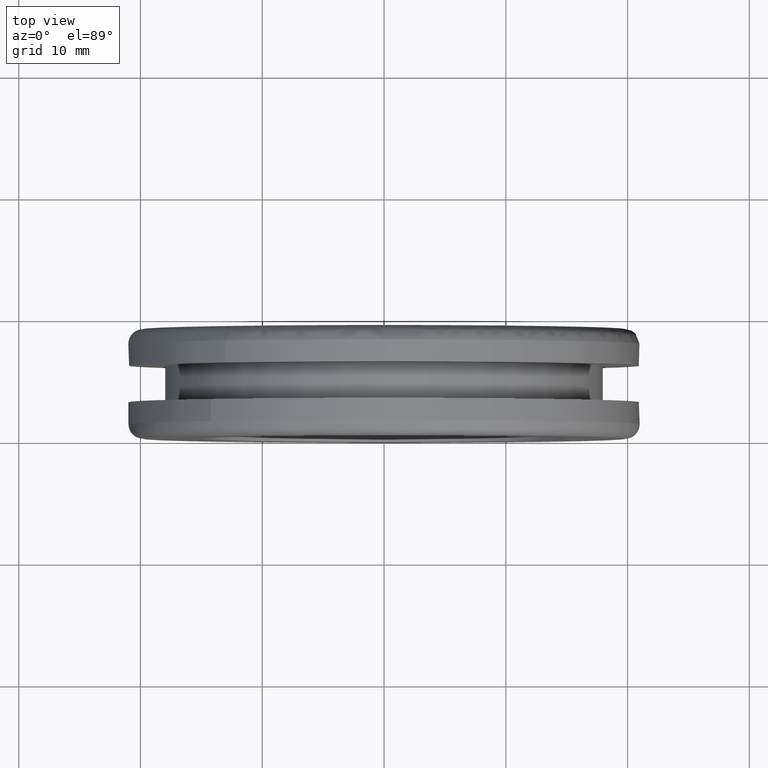
[diagram: clean part render]
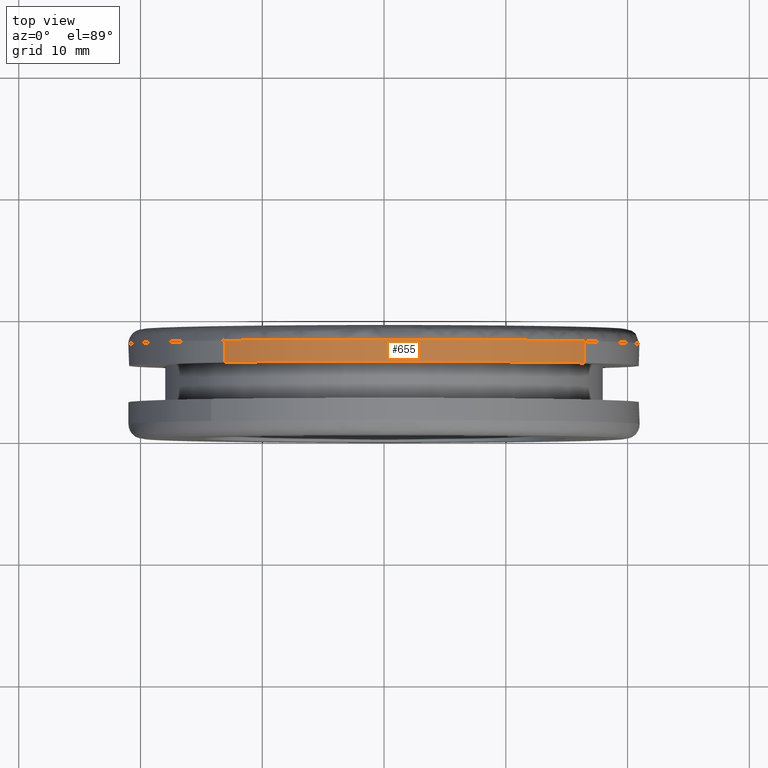
[diagram: same view with one face highlighted and labeled with its STEP entity id]
A machine part, top view. The second image highlights one B-rep face of the part: STEP entity #655.
In plain terms, the highlighted face is a freeform B-spline surface patch.
Its self-contained STEP definition (entity closure, byte-faithful):
#468=CARTESIAN_POINT('',(-13.072806069207591,7.800000000011131,16.434772328112299));
#469=VERTEX_POINT('',#468);
#515=CARTESIAN_POINT('',(16.434772329288549,7.799999999999820,13.072806067728861));
#516=VERTEX_POINT('',#515);
#532=CARTESIAN_POINT('',(16.434772412118811,6.0,13.072805963596920));
#533=VERTEX_POINT('',#532);
#534=CARTESIAN_POINT('',(16.434772329288549,7.799999999999820,13.072806067728861));
#535=CARTESIAN_POINT('',(16.434772412118811,6.0,13.072805963596920));
#536=QUASI_UNIFORM_CURVE('',1,(#534,#535),.UNSPECIFIED.,.F.,.U.);
#537=EDGE_CURVE('',#516,#533,#536,.T.);
#556=CARTESIAN_POINT('',(-13.072806084870271,6.0,16.434772315653660));
#557=VERTEX_POINT('',#556);
#573=CARTESIAN_POINT('',(-13.072806069207591,7.800000000011131,16.434772328112299));
#574=CARTESIAN_POINT('',(-13.072806084870271,6.0,16.434772315653660));
#575=QUASI_UNIFORM_CURVE('',1,(#573,#574),.UNSPECIFIED.,.F.,.U.);
#576=EDGE_CURVE('',#469,#557,#575,.T.);
#581=CARTESIAN_POINT('',(16.434771293900688,7.845000000056883,13.072807369390009));
#582=CARTESIAN_POINT('',(3.361963924510681,7.845000000056885,29.507578663290690));
#583=CARTESIAN_POINT('',(-13.072807369390009,7.845000000056883,16.434771293900688));
#584=CARTESIAN_POINT('',(16.434771293900688,5.953874999998577,13.072807369390009));
#585=CARTESIAN_POINT('',(3.361963924510681,5.953874999998578,29.507578663290690));
#586=CARTESIAN_POINT('',(-13.072807369390009,5.953874999998577,16.434771293900688));
#594=(BOUNDED_SURFACE()B_SPLINE_SURFACE(2,1,((#581,#584),(#582,#585),(#583,#586)),.UNSPECIFIED.,.F.,.F.,.U.)B_SPLINE_SURFACE_WITH_KNOTS((3,3),(2,2),(0.0,34.793939239339977),(0.0,1.0),.UNSPECIFIED.)GEOMETRIC_REPRESENTATION_ITEM()RATIONAL_B_SPLINE_SURFACE(((1.0,1.0),(0.707106781186548,0.707106781186548),(1.0,1.0)))REPRESENTATION_ITEM('')SURFACE());
#595=CARTESIAN_POINT('',(0.0,7.799999999999890,21.0));
#596=VERTEX_POINT('',#595);
#597=CARTESIAN_POINT('',(0.0,7.799999999999890,21.0));
#598=CARTESIAN_POINT('',(-7.333527369877913,7.799999999999890,20.999999999999996));
#599=CARTESIAN_POINT('',(-13.072806069207587,7.800000000011131,16.434772328112302));
#607=(BOUNDED_CURVE()B_SPLINE_CURVE(2,(#597,#598,#599),.UNSPECIFIED.,.F.,.U.)B_SPLINE_CURVE_WITH_KNOTS((3,3),(0.500000000000000,0.607863865415925),.UNSPECIFIED.)CURVE()GEOMETRIC_REPRESENTATION_ITEM()RATIONAL_B_SPLINE_CURVE((1.0,0.873629621058675,0.856305622490842))REPRESENTATION_ITEM(''));
#608=EDGE_CURVE('',#596,#469,#607,.T.);
#609=ORIENTED_EDGE('',*,*,#608,.T.);
#610=ORIENTED_EDGE('',*,*,#576,.T.);
#611=CARTESIAN_POINT('',(0.0,6.0,21.0));
#612=VERTEX_POINT('',#611);
#613=CARTESIAN_POINT('',(0.0,6.0,21.0));
#614=CARTESIAN_POINT('',(-7.333527381104963,6.0,21.000000000000004));
#615=CARTESIAN_POINT('',(-13.072806084870265,6.000000000000001,16.434772315653660));
#623=(BOUNDED_CURVE()B_SPLINE_CURVE(2,(#613,#614,#615),.UNSPECIFIED.,.F.,.U.)B_SPLINE_CURVE_WITH_KNOTS((3,3),(0.500000000000000,0.607863865560188),.UNSPECIFIED.)CURVE()GEOMETRIC_REPRESENTATION_ITEM()RATIONAL_B_SPLINE_CURVE((1.0,0.873629620889660,0.856305622444502))REPRESENTATION_ITEM(''));
#624=EDGE_CURVE('',#612,#557,#623,.T.);
#625=ORIENTED_EDGE('',*,*,#624,.F.);
#626=CARTESIAN_POINT('',(16.434772412118814,6.000000000000001,13.072805963596918));
#627=CARTESIAN_POINT('',(10.129198664272909,6.000000000000001,21.000000000000004));
#628=CARTESIAN_POINT('',(0.0,6.0,21.0));
#636=(BOUNDED_CURVE()B_SPLINE_CURVE(2,(#626,#627,#628),.UNSPECIFIED.,.F.,.U.)B_SPLINE_CURVE_WITH_KNOTS((3,3),(0.357863864443182,0.500000000000000),.UNSPECIFIED.)CURVE()GEOMETRIC_REPRESENTATION_ITEM()RATIONAL_B_SPLINE_CURVE((0.856305622803306,0.833477158988234,1.0))REPRESENTATION_ITEM(''));
#637=EDGE_CURVE('',#533,#612,#636,.T.);
#638=ORIENTED_EDGE('',*,*,#637,.F.);
#639=ORIENTED_EDGE('',*,*,#537,.F.);
#640=CARTESIAN_POINT('',(16.434772329288549,7.799999999999820,13.072806067728857));
#641=CARTESIAN_POINT('',(10.129198582265900,7.799999999999890,21.0));
#642=CARTESIAN_POINT('',(0.0,7.799999999999890,21.0));
#650=(BOUNDED_CURVE()B_SPLINE_CURVE(2,(#640,#641,#642),.UNSPECIFIED.,.F.,.U.)B_SPLINE_CURVE_WITH_KNOTS((3,3),(0.357863865402305,0.500000000000000),.UNSPECIFIED.)CURVE()GEOMETRIC_REPRESENTATION_ITEM()RATIONAL_B_SPLINE_CURVE((0.856305622495217,0.833477160111916,1.0))REPRESENTATION_ITEM(''));
#651=EDGE_CURVE('',#516,#596,#650,.T.);
#652=ORIENTED_EDGE('',*,*,#651,.T.);
#653=EDGE_LOOP('',(#609,#610,#625,#638,#639,#652));
#654=FACE_OUTER_BOUND('',#653,.T.);
#655=ADVANCED_FACE('',(#654),#594,.T.);